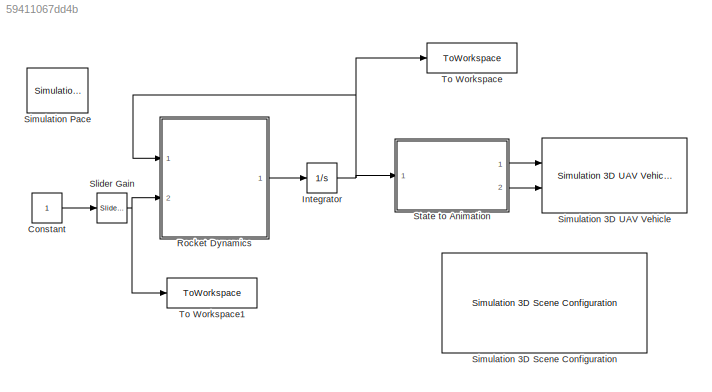
MODEL slx_59411067dd4b
KIND model
CONFIG AbsTol = auto
CONFIG EnableMultiTasking = off
CONFIG FixedStep = auto
CONFIG MaxStep = auto
CONFIG MinStep = auto
CONFIG RelTol = 1e-3
CONFIG SampleTimeConstraint = Unconstrained
CONFIG SolverName = VariableStepAuto
CONFIG StartTime = 0.0
CONFIG StopTime = 10.0
BLOCK [Constant] Constant
  SampleTime = 0.02
BLOCK [Integrator] Integrator
  InitialCondition = [0 -1 0 0 0 0]
  Ports = [1, 1]
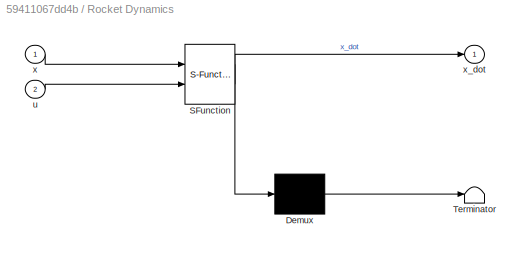
BLOCK [SubSystem] Rocket Dynamics
  ErrorFcn = Stateflow.Translate.translate
  PermitHierarchicalResolution = ExplicitOnly
  Ports = [2, 1]
  RequestExecContextInheritance = off
  SFBlockType = MATLAB Function
  TreatAsAtomicUnit = on
BLOCK [Demux] Rocket Dynamics/ Demux 
  Outputs = 1
  Ports = [1, 1]
BLOCK [S-Function] Rocket Dynamics/ SFunction 
  EnableBusSupport = on
  FunctionName = sf_sfun
  PortCounts = [2 2]
  Ports = [2, 2]
  SFcnIsStateOwnerBlock = off
  SFunctionDeploymentMode = off
  Tag = Stateflow S-Function 2
BLOCK [Terminator] Rocket Dynamics/ Terminator 
BLOCK [Inport] Rocket Dynamics/u
  Port = 2
BLOCK [Inport] Rocket Dynamics/x
BLOCK [Outport] Rocket Dynamics/x_dot
BLOCK [Reference] Simulation 3D Scene Configuration  REF=sim3dlib/Simulation 3D Scene Configuration
  Ports = []
  Priority = 0
  SourceBlock = sim3dlib/Simulation 3D Scene Configuration
  SourceProductBaseCode = DR,UV,VE
  SourceType = Simulation 3D Scene Configuration
BLOCK [Reference] Simulation 3D UAV Vehicle  REF=uavsim3dlib/Simulation 3D UAV Vehicle
  Ports = [2]
  Priority = -1
  SourceBlock = uavsim3dlib/Simulation 3D UAV Vehicle
  SourceProductBaseCode = UV
  SourceType = Simulation 3D UAV Vehicle
BLOCK [Reference] Simulation Pace  REF=aerolibanimutils/Simulation Pace
  AttributesFormatString = %<SleepMode>\n%<SimulationPace> sec/sec
  Ports = []
  SourceBlock = aerolibanimutils/Simulation Pace
  SourceProductBaseCode = AE
  SourceType = Simulation Pace
BLOCK [Reference] Slider Gain  REF=simulink/Math
Operations/Slider
Gain
  Ports = [1, 1]
  SourceBlock = simulink/Math\nOperations/Slider\nGain
  SourceProductBaseCode = SL
  SourceType = Slider Gain
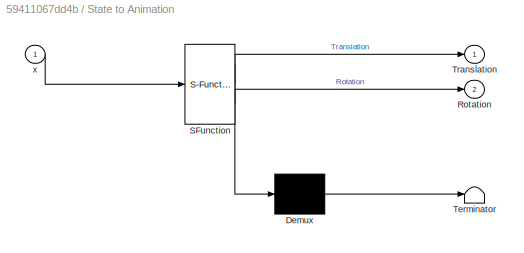
BLOCK [SubSystem] State to Animation
  ErrorFcn = Stateflow.Translate.translate
  PermitHierarchicalResolution = ExplicitOnly
  Ports = [1, 2]
  RequestExecContextInheritance = off
  SFBlockType = MATLAB Function
  TreatAsAtomicUnit = on
BLOCK [Demux] State to Animation/ Demux 
  Outputs = 1
  Ports = [1, 1]
BLOCK [S-Function] State to Animation/ SFunction 
  EnableBusSupport = on
  FunctionName = sf_sfun
  PortCounts = [1 3]
  Ports = [1, 3]
  SFcnIsStateOwnerBlock = off
  SFunctionDeploymentMode = off
  Tag = Stateflow S-Function 1
BLOCK [Terminator] State to Animation/ Terminator 
BLOCK [Outport] State to Animation/Rotation
  Port = 2
BLOCK [Outport] State to Animation/Translation
BLOCK [Inport] State to Animation/x
BLOCK [ToWorkspace] To Workspace
  FixptAsFi = on
  MaxDataPoints = inf
  Ports = [1]
  SampleTime = -1
  SaveFormat = Timeseries
  VariableName = x
BLOCK [ToWorkspace] To Workspace1
  FixptAsFi = on
  MaxDataPoints = inf
  Ports = [1]
  SampleTime = -1
  SaveFormat = Timeseries
  VariableName = u
LINE Constant:1 -> Slider Gain:1
NET Integrator:1 -> Rocket Dynamics:1, State to Animation:1, To Workspace:1
LINE Rocket Dynamics:1 -> Integrator:1
NET Slider Gain:1 -> Rocket Dynamics:2, To Workspace1:1
LINE State to Animation:1 -> Simulation 3D UAV Vehicle:1
LINE State to Animation:2 -> Simulation 3D UAV Vehicle:2
note: NET lines group one-source signal fan-out (src -> all destinations, sorted); 1:1 wires keep LINE
CHART State to Animation states=1 transitions=1
  STATE_LABEL 'eML_blk_kernel()'
  STATE_LABEL "SCRIPT:\nfunction [Translation,Rotation] = fcn(x)\n\nTranslation = [ x(1) 0 -x(2) ]';\nRotation = [ 0 x(5) 0 ]';\n\n"
CHART Rocket Dynamics states=1 transitions=1
  STATE_LABEL 'eML_blk_kernel()'
  STATE_LABEL 'SCRIPT:\nfunction x_dot = fcn(x,u)\n\n%% rocket params\nm = 0.2;\nh_cg = 0.5;\nJ = 1/12*m*(h_cg*2)^2; % using 1/12ML^2 formula\ng = 10;\nT = m*g*1.0;\n\n%% init variables\nx_dot = zeros(6,1);\nthe = x(5);\ndel = u(1);\n\n%% derivative of position is velocity\nx_dot(1:2) = x(3:4);\n\n%% derivative of velocity\nx_dot(3:4) = -[ sin(del+the); cos(del+the)]*T/m + [0;1]*g;\n\n%% derivative of angle\nx_dot(5) = x(6);\n\n%% deri...<+68ch>'
CHART  states=0 transitions=0
CHART  states=0 transitions=0
